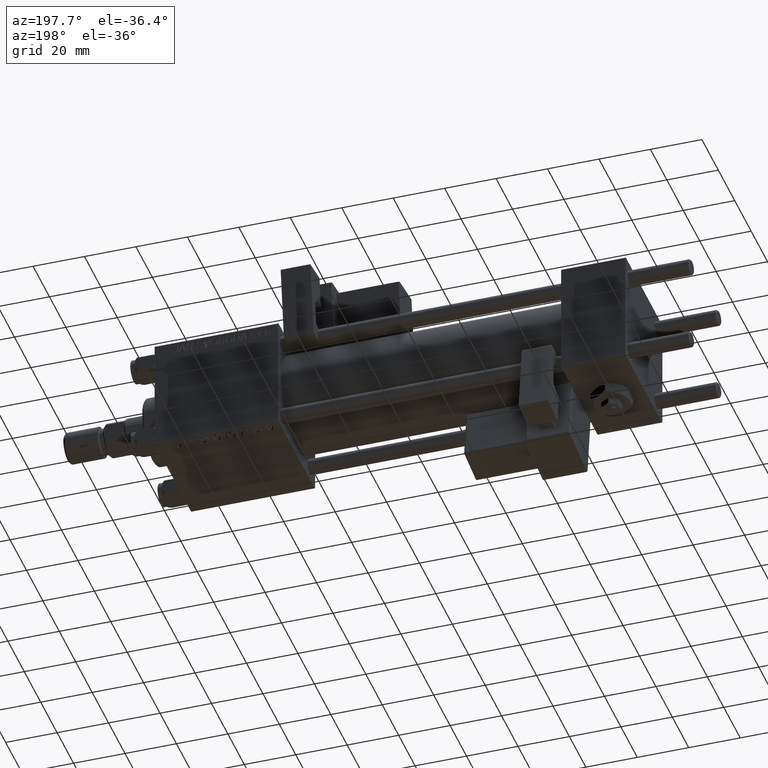
[diagram: clean part render]
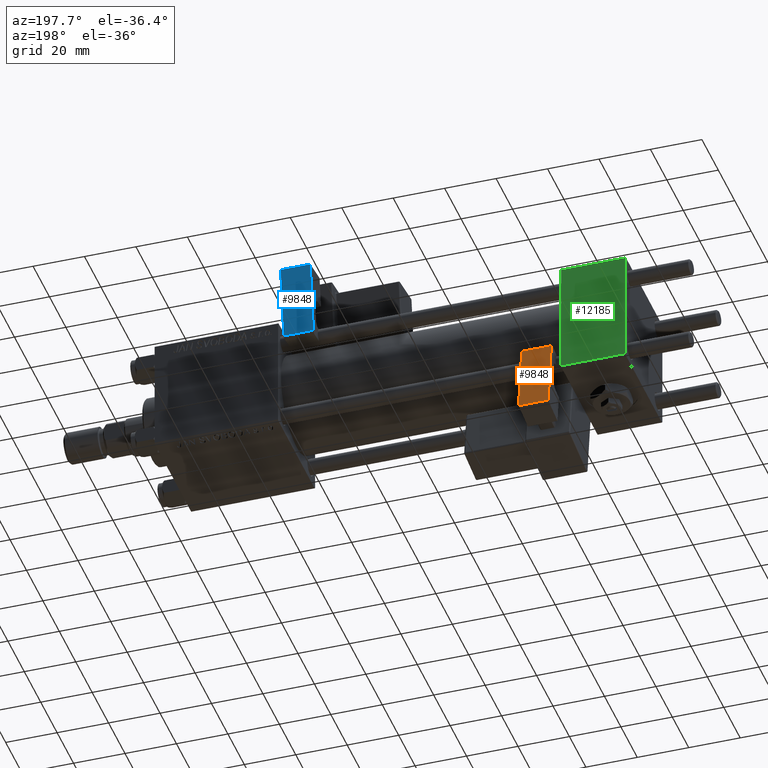
[diagram: same view with three faces highlighted in distinct colors, each labeled with its STEP entity id]
A machine part, auxiliary view with three faces highlighted in distinct colors.
Their STEP definitions:

[orange] entity #9848 — the highlighted planar face has unit normal (0, -0.9902, -0.1399).
#1270 = VERTEX_POINT ( 'NONE', #50110 ) ;
#2059 = VECTOR ( 'NONE', #27683, 1000.000000000000000 ) ;
#2843 = VECTOR ( 'NONE', #33221, 1000.000000000000000 ) ;
#2937 = DIRECTION ( 'NONE',  ( 1.000000000000000000, 1.508455196501571183E-16, -0.000000000000000000 ) ) ;
#4228 = EDGE_CURVE ( 'NONE', #47887, #1270, #48407, .T. ) ;
#8505 = ORIENTED_EDGE ( 'NONE', *, *, #11256, .F. ) ;
#8834 = PLANE ( 'NONE',  #23108 ) ;
#9848 = ADVANCED_FACE ( 'NONE', ( #38759 ), #8834, .F. ) ;
#11157 = EDGE_CURVE ( 'NONE', #15691, #47887, #44950, .T. ) ;
#11246 = LINE ( 'NONE', #24703, #2843 ) ;
#11256 = EDGE_CURVE ( 'NONE', #15691, #20964, #19714, .T. ) ;
#15691 = VERTEX_POINT ( 'NONE', #43729 ) ;
#16012 = CARTESIAN_POINT ( 'NONE',  ( 5.750000000000000000, 5.750000000000001776, 12.00000000000000000 ) ) ;
#16995 = ORIENTED_EDGE ( 'NONE', *, *, #4228, .T. ) ;
#19714 = LINE ( 'NONE', #48535, #2059 ) ;
#20964 = VERTEX_POINT ( 'NONE', #51750 ) ;
#23108 = AXIS2_PLACEMENT_3D ( 'NONE', #34658, #46168, #29976 ) ;
#24703 = CARTESIAN_POINT ( 'NONE',  ( -5.750000000000000000, 5.750000000000000000, 0.000000000000000000 ) ) ;
#25773 = VECTOR ( 'NONE', #2937, 1000.000000000000000 ) ;
#27683 = DIRECTION ( 'NONE',  ( -0.000000000000000000, -0.000000000000000000, -1.000000000000000000 ) ) ;
#29976 = DIRECTION ( 'NONE',  ( 1.000000000000000000, 1.508455196501571183E-16, 0.000000000000000000 ) ) ;
#33221 = DIRECTION ( 'NONE',  ( -1.000000000000000000, -1.508455196501571429E-16, -0.000000000000000000 ) ) ;
#33610 = ORIENTED_EDGE ( 'NONE', *, *, #48559, .T. ) ;
#34658 = CARTESIAN_POINT ( 'NONE',  ( -5.750000000000000000, 5.750000000000000000, 12.00000000000000000 ) ) ;
#36168 = VECTOR ( 'NONE', #36889, 1000.000000000000000 ) ;
#36889 = DIRECTION ( 'NONE',  ( -0.000000000000000000, -0.000000000000000000, -1.000000000000000000 ) ) ;
#38759 = FACE_OUTER_BOUND ( 'NONE', #51172, .T. ) ;
#40308 = CARTESIAN_POINT ( 'NONE',  ( -5.750000000000000000, 5.750000000000000000, 28.00000000000000000 ) ) ;
#42588 = ORIENTED_EDGE ( 'NONE', *, *, #11157, .T. ) ;
#43729 = CARTESIAN_POINT ( 'NONE',  ( -5.750000000000000000, 5.750000000000000000, 28.00000000000000000 ) ) ;
#44950 = LINE ( 'NONE', #40308, #25773 ) ;
#46168 = DIRECTION ( 'NONE',  ( 1.508455196501571183E-16, -1.000000000000000000, 0.000000000000000000 ) ) ;
#47887 = VERTEX_POINT ( 'NONE', #51201 ) ;
#48407 = LINE ( 'NONE', #16012, #36168 ) ;
#48535 = CARTESIAN_POINT ( 'NONE',  ( -5.750000000000000000, 5.750000000000000000, 12.00000000000000000 ) ) ;
#48559 = EDGE_CURVE ( 'NONE', #1270, #20964, #11246, .T. ) ;
#50110 = CARTESIAN_POINT ( 'NONE',  ( 5.750000000000000000, 5.750000000000001776, 0.000000000000000000 ) ) ;
#51172 = EDGE_LOOP ( 'NONE', ( #8505, #42588, #16995, #33610 ) ) ;
#51201 = CARTESIAN_POINT ( 'NONE',  ( 5.750000000000000000, 5.750000000000001776, 28.00000000000000000 ) ) ;
#51750 = CARTESIAN_POINT ( 'NONE',  ( -5.750000000000000000, 5.750000000000000000, 0.000000000000000000 ) ) ;

[blue] entity #9848 — the highlighted planar face has unit normal (-0, -0.9908, 0.1355).
#1270 = VERTEX_POINT ( 'NONE', #50110 ) ;
#2059 = VECTOR ( 'NONE', #27683, 1000.000000000000000 ) ;
#2843 = VECTOR ( 'NONE', #33221, 1000.000000000000000 ) ;
#2937 = DIRECTION ( 'NONE',  ( 1.000000000000000000, 1.508455196501571183E-16, -0.000000000000000000 ) ) ;
#4228 = EDGE_CURVE ( 'NONE', #47887, #1270, #48407, .T. ) ;
#8505 = ORIENTED_EDGE ( 'NONE', *, *, #11256, .F. ) ;
#8834 = PLANE ( 'NONE',  #23108 ) ;
#9848 = ADVANCED_FACE ( 'NONE', ( #38759 ), #8834, .F. ) ;
#11157 = EDGE_CURVE ( 'NONE', #15691, #47887, #44950, .T. ) ;
#11246 = LINE ( 'NONE', #24703, #2843 ) ;
#11256 = EDGE_CURVE ( 'NONE', #15691, #20964, #19714, .T. ) ;
#15691 = VERTEX_POINT ( 'NONE', #43729 ) ;
#16012 = CARTESIAN_POINT ( 'NONE',  ( 5.750000000000000000, 5.750000000000001776, 12.00000000000000000 ) ) ;
#16995 = ORIENTED_EDGE ( 'NONE', *, *, #4228, .T. ) ;
#19714 = LINE ( 'NONE', #48535, #2059 ) ;
#20964 = VERTEX_POINT ( 'NONE', #51750 ) ;
#23108 = AXIS2_PLACEMENT_3D ( 'NONE', #34658, #46168, #29976 ) ;
#24703 = CARTESIAN_POINT ( 'NONE',  ( -5.750000000000000000, 5.750000000000000000, 0.000000000000000000 ) ) ;
#25773 = VECTOR ( 'NONE', #2937, 1000.000000000000000 ) ;
#27683 = DIRECTION ( 'NONE',  ( -0.000000000000000000, -0.000000000000000000, -1.000000000000000000 ) ) ;
#29976 = DIRECTION ( 'NONE',  ( 1.000000000000000000, 1.508455196501571183E-16, 0.000000000000000000 ) ) ;
#33221 = DIRECTION ( 'NONE',  ( -1.000000000000000000, -1.508455196501571429E-16, -0.000000000000000000 ) ) ;
#33610 = ORIENTED_EDGE ( 'NONE', *, *, #48559, .T. ) ;
#34658 = CARTESIAN_POINT ( 'NONE',  ( -5.750000000000000000, 5.750000000000000000, 12.00000000000000000 ) ) ;
#36168 = VECTOR ( 'NONE', #36889, 1000.000000000000000 ) ;
#36889 = DIRECTION ( 'NONE',  ( -0.000000000000000000, -0.000000000000000000, -1.000000000000000000 ) ) ;
#38759 = FACE_OUTER_BOUND ( 'NONE', #51172, .T. ) ;
#40308 = CARTESIAN_POINT ( 'NONE',  ( -5.750000000000000000, 5.750000000000000000, 28.00000000000000000 ) ) ;
#42588 = ORIENTED_EDGE ( 'NONE', *, *, #11157, .T. ) ;
#43729 = CARTESIAN_POINT ( 'NONE',  ( -5.750000000000000000, 5.750000000000000000, 28.00000000000000000 ) ) ;
#44950 = LINE ( 'NONE', #40308, #25773 ) ;
#46168 = DIRECTION ( 'NONE',  ( 1.508455196501571183E-16, -1.000000000000000000, 0.000000000000000000 ) ) ;
#47887 = VERTEX_POINT ( 'NONE', #51201 ) ;
#48407 = LINE ( 'NONE', #16012, #36168 ) ;
#48535 = CARTESIAN_POINT ( 'NONE',  ( -5.750000000000000000, 5.750000000000000000, 12.00000000000000000 ) ) ;
#48559 = EDGE_CURVE ( 'NONE', #1270, #20964, #11246, .T. ) ;
#50110 = CARTESIAN_POINT ( 'NONE',  ( 5.750000000000000000, 5.750000000000001776, 0.000000000000000000 ) ) ;
#51172 = EDGE_LOOP ( 'NONE', ( #8505, #42588, #16995, #33610 ) ) ;
#51201 = CARTESIAN_POINT ( 'NONE',  ( 5.750000000000000000, 5.750000000000001776, 28.00000000000000000 ) ) ;
#51750 = CARTESIAN_POINT ( 'NONE',  ( -5.750000000000000000, 5.750000000000000000, 0.000000000000000000 ) ) ;

[green] entity #12185 — the highlighted planar face has unit normal (0, 1, 0).
#1217 = VECTOR ( 'NONE', #38843, 1000.000000000000000 ) ;
#2150 = EDGE_CURVE ( 'NONE', #5954, #13501, #47337, .T. ) ;
#2389 = DIRECTION ( 'NONE',  ( 0.000000000000000000, 0.000000000000000000, -1.000000000000000000 ) ) ;
#2604 = ORIENTED_EDGE ( 'NONE', *, *, #2150, .T. ) ;
#4731 = ORIENTED_EDGE ( 'NONE', *, *, #41628, .T. ) ;
#5309 = CARTESIAN_POINT ( 'NONE',  ( 25.00000000000000000, 22.50000000000000000, 22.50000000000000355 ) ) ;
#5954 = VERTEX_POINT ( 'NONE', #24114 ) ;
#6119 = LINE ( 'NONE', #34462, #1217 ) ;
#6945 = DIRECTION ( 'NONE',  ( 0.000000000000000000, -0.000000000000000000, 1.000000000000000000 ) ) ;
#9499 = VERTEX_POINT ( 'NONE', #43341 ) ;
#11085 = FACE_OUTER_BOUND ( 'NONE', #40476, .T. ) ;
#11693 = VECTOR ( 'NONE', #2389, 1000.000000000000000 ) ;
#12110 = EDGE_CURVE ( 'NONE', #13501, #9499, #6119, .T. ) ;
#12185 = ADVANCED_FACE ( 'NONE', ( #11085 ), #32510, .T. ) ;
#13501 = VERTEX_POINT ( 'NONE', #41760 ) ;
#17196 = VERTEX_POINT ( 'NONE', #27562 ) ;
#19382 = VECTOR ( 'NONE', #19577, 1000.000000000000000 ) ;
#19577 = DIRECTION ( 'NONE',  ( 1.000000000000000000, 0.000000000000000000, 0.000000000000000000 ) ) ;
#20142 = DIRECTION ( 'NONE',  ( -0.000000000000000000, 1.000000000000000000, 0.000000000000000000 ) ) ;
#23978 = LINE ( 'NONE', #40716, #19382 ) ;
#24114 = CARTESIAN_POINT ( 'NONE',  ( 25.00000000000000000, 22.50000000000000000, 21.99999999999999645 ) ) ;
#25419 = DIRECTION ( 'NONE',  ( 0.000000000000000000, 0.000000000000000000, -1.000000000000000000 ) ) ;
#27562 = CARTESIAN_POINT ( 'NONE',  ( 0.000000000000000000, 22.50000000000000000, 21.99999999999999645 ) ) ;
#27678 = CARTESIAN_POINT ( 'NONE',  ( 0.000000000000000000, 22.50000000000000000, 22.50000000000000355 ) ) ;
#28436 = AXIS2_PLACEMENT_3D ( 'NONE', #49506, #20142, #6945 ) ;
#28511 = ORIENTED_EDGE ( 'NONE', *, *, #49911, .F. ) ;
#32510 = PLANE ( 'NONE',  #28436 ) ;
#34462 = CARTESIAN_POINT ( 'NONE',  ( 25.00000000000000000, 22.50000000000000000, -21.99999999999998224 ) ) ;
#35387 = LINE ( 'NONE', #27678, #11693 ) ;
#38843 = DIRECTION ( 'NONE',  ( -1.000000000000000000, 0.000000000000000000, 0.000000000000000000 ) ) ;
#40418 = VECTOR ( 'NONE', #25419, 1000.000000000000000 ) ;
#40476 = EDGE_LOOP ( 'NONE', ( #2604, #44059, #28511, #4731 ) ) ;
#40716 = CARTESIAN_POINT ( 'NONE',  ( 25.00000000000000000, 22.50000000000000000, 21.99999999999999645 ) ) ;
#41628 = EDGE_CURVE ( 'NONE', #17196, #5954, #23978, .T. ) ;
#41760 = CARTESIAN_POINT ( 'NONE',  ( 25.00000000000000000, 22.50000000000000000, -21.99999999999996803 ) ) ;
#43341 = CARTESIAN_POINT ( 'NONE',  ( 0.000000000000000000, 22.50000000000000000, -21.99999999999996803 ) ) ;
#44059 = ORIENTED_EDGE ( 'NONE', *, *, #12110, .T. ) ;
#47337 = LINE ( 'NONE', #5309, #40418 ) ;
#49506 = CARTESIAN_POINT ( 'NONE',  ( 25.00000000000000000, 22.50000000000000000, 22.50000000000000355 ) ) ;
#49911 = EDGE_CURVE ( 'NONE', #17196, #9499, #35387, .T. ) ;